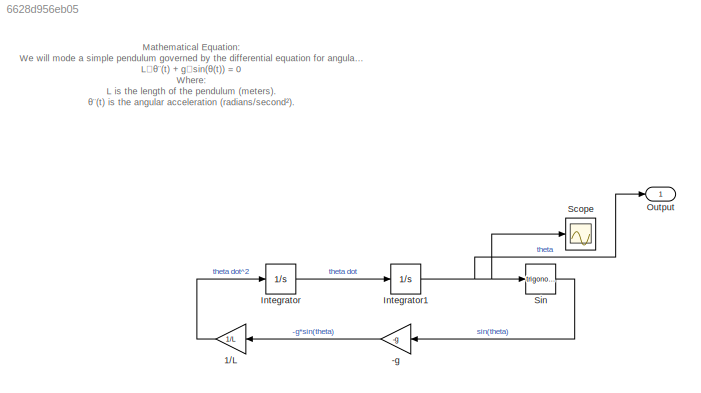
MODEL slx_6628d956eb05
KIND model
CONFIG AbsTol = auto
CONFIG EnableMultiTasking = off
CONFIG FixedStep = auto
CONFIG MaxStep = 1e-3
CONFIG MinStep = auto
CONFIG RelTol = 1e-3
CONFIG SampleTimeConstraint = Unconstrained
CONFIG SolverName = VariableStepAuto
CONFIG StartTime = 0.0
CONFIG StopTime = Time_stop
BLOCK [Gain] -g
  Gain = -g
BLOCK [Gain] 1//L
  Gain = 1/L
BLOCK [Integrator] Integrator
  Ports = [1, 1]
BLOCK [Integrator] Integrator1
  InitialCondition = theta_0
  Ports = [1, 1]
BLOCK [Outport] Output
BLOCK [Scope] Scope
  Floating = off
  NumInputPorts = 1
  Ports = [1]
  ScopeSpecificationString = Simulink.scopes.TimeScopeBlockCfg('CurrentConfiguration', extmgr.ConfigurationSet(extmgr.Configuration('Core','General UI',true),extmgr.Configuration('Core','Source UI',true),extmgr.Configuration('Sources','WiredSimulink',true),extmgr.Configuration('Visuals','Time Domain',true,'SerializedDisplays',{struct('MinYLimReal','34.823','MaxYLimReal','40.57522','YLabelReal','','MinYLimMag','34.823','MaxYLi...<+1356ch>
BLOCK [Trigonometry] Sin
  Ports = [1, 1]
ANNOTATION (root): M athematical Equation: We will mode a simple pendulum governed by the differential equation for angular displacement θ ( t ): L ⋅ θ ¨( t ) + g ⋅sin( θ ( t )) = 0 Where: L is the length of the pendulum (meters). θ ¨( t ) is the angular acceleration (radians/second²). g is the acceleration due to gravity (9.81 m/s²). θ ( t ) is the angular displacement from the vertical position (radians). L =1 met...<+19ch>
LINE -g:1 -> 1//L:1
LINE 1//L:1 -> Integrator:1
NET Integrator1:1 -> Output:1, Scope:1, Sin:1
LINE Integrator:1 -> Integrator1:1
LINE Sin:1 -> -g:1
note: NET lines group one-source signal fan-out (src -> all destinations, sorted); 1:1 wires keep LINE
